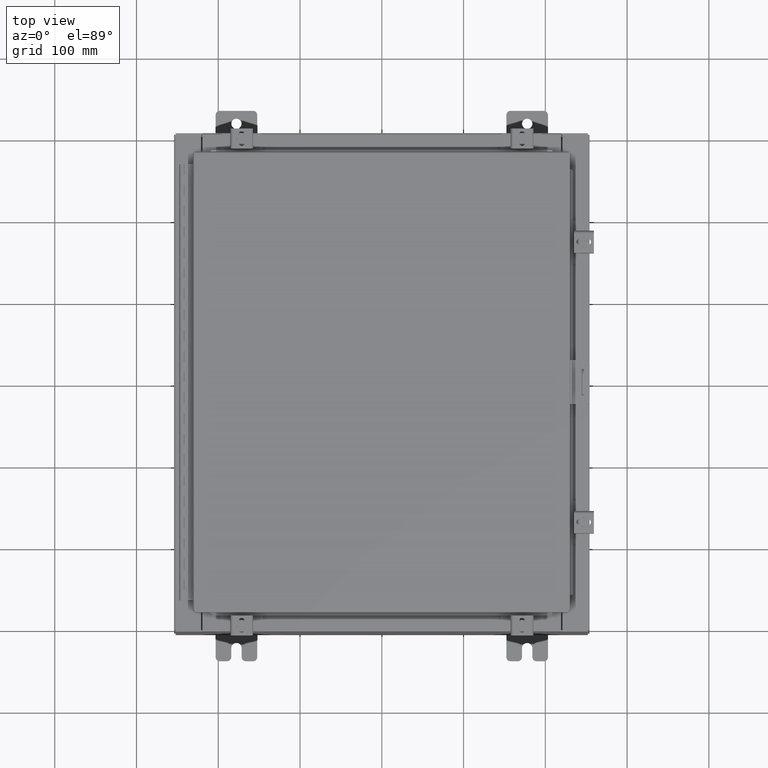
[diagram: clean part render]
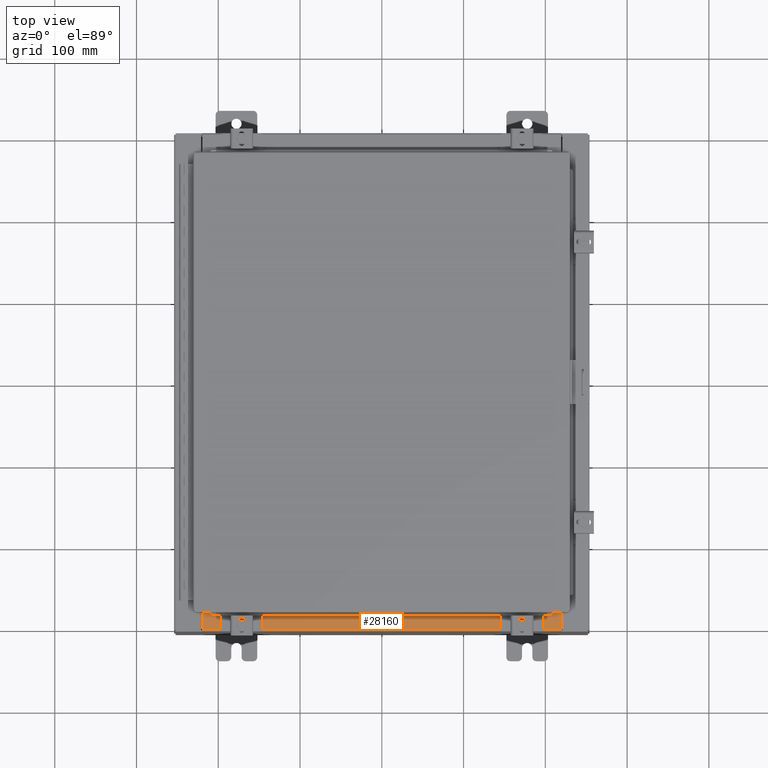
[diagram: same view with one face highlighted and labeled with its STEP entity id]
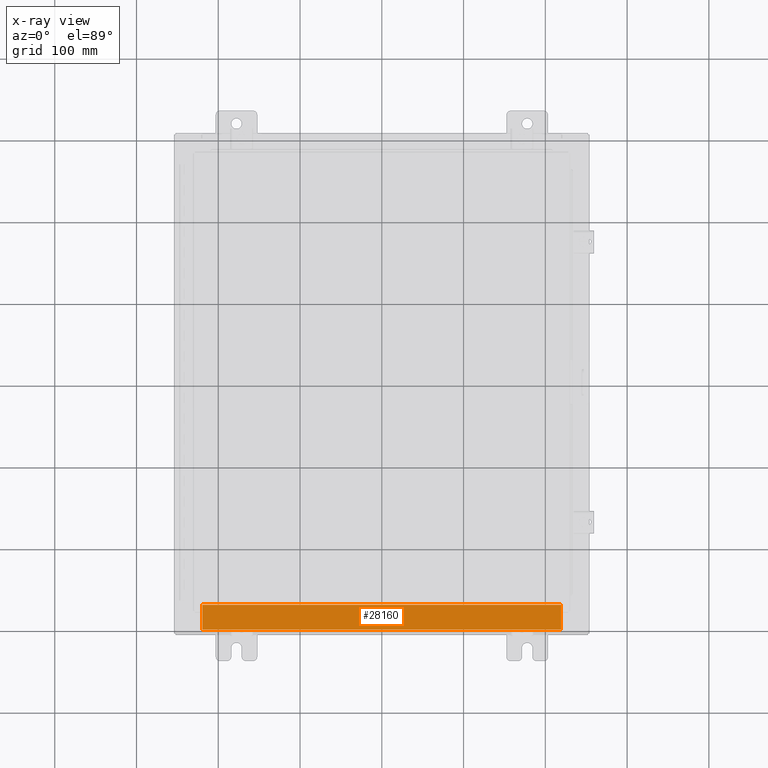
[diagram: x-ray of the same camera — body ghosted, the highlighted face saturated]
A machine part, top view. The second image highlights one B-rep face of the part: STEP entity #28160.
The next image is the same camera in x-ray: the body ghosted, the highlighted face saturated — about 0% of this face is hidden behind the body in this view.
In plain terms, the highlighted planar face has unit normal (-0, -0, 1).
Its self-contained STEP definition (entity closure, byte-faithful):
#844 = DIRECTION ( 'NONE',  ( -1.000000000000000000, -6.325772226333218300E-017, 2.256011509776178200E-031 ) ) ;
#1039 = CARTESIAN_POINT ( 'NONE',  ( 5.547702242495411600E-018, -0.08770000000000081900, 5.000000000000000000 ) ) ;
#2684 = ORIENTED_EDGE ( 'NONE', *, *, #25352, .F. ) ;
#4512 = VERTEX_POINT ( 'NONE', #13858 ) ;
#9094 = CARTESIAN_POINT ( 'NONE',  ( 0.0000000000000000000, 1.782631094477737600E-014, 5.000000000000000000 ) ) ;
#9279 = DIRECTION ( 'NONE',  ( -0.0000000000000000000, 1.000000000000000000, -3.566381192773190000E-015 ) ) ;
#9779 = CARTESIAN_POINT ( 'NONE',  ( -8.637200000000000000, -0.07469999999999973900, 5.000000000000000000 ) ) ;
#10307 = CARTESIAN_POINT ( 'NONE',  ( 8.637200000000000000, -1.287299999999999900, 5.000000000000004400 ) ) ;
#11802 = FACE_OUTER_BOUND ( 'NONE', #21431, .T. ) ;
#11911 = LINE ( 'NONE', #17254, #23576 ) ;
#13858 = CARTESIAN_POINT ( 'NONE',  ( 8.637200000000000000, -0.08770000000000047200, 5.000000000000000000 ) ) ;
#16125 = DIRECTION ( 'NONE',  ( -0.0000000000000000000, -1.000000000000000000, 3.566381192773190000E-015 ) ) ;
#16359 = CARTESIAN_POINT ( 'NONE',  ( 8.637200000000000000, -1.300299999999999800, 5.000000000000004400 ) ) ;
#16987 = EDGE_CURVE ( 'NONE', #4512, #30253, #26686, .T. ) ;
#17254 = CARTESIAN_POINT ( 'NONE',  ( 8.637200000000000000, -1.287299999999999900, 5.000000000000003600 ) ) ;
#17615 = ORIENTED_EDGE ( 'NONE', *, *, #25209, .F. ) ;
#18578 = CARTESIAN_POINT ( 'NONE',  ( -8.637200000000000000, -0.08770000000000081900, 5.000000000000000000 ) ) ;
#20020 = VERTEX_POINT ( 'NONE', #18578 ) ;
#21205 = PLANE ( 'NONE',  #30987 ) ;
#21371 = DIRECTION ( 'NONE',  ( 0.0000000000000000000, -1.000000000000000000, 3.566381192773190000E-015 ) ) ;
#21431 = EDGE_LOOP ( 'NONE', ( #2684, #17615, #23351, #29680 ) ) ;
#22673 = DIRECTION ( 'NONE',  ( 0.0000000000000000000, 3.566381192773190000E-015, 1.000000000000000000 ) ) ;
#23224 = LINE ( 'NONE', #1039, #32196 ) ;
#23351 = ORIENTED_EDGE ( 'NONE', *, *, #16987, .F. ) ;
#23576 = VECTOR ( 'NONE', #26025, 39.37007874015748100 ) ;
#24715 = EDGE_CURVE ( 'NONE', #4512, #20020, #23224, .T. ) ;
#24891 = VERTEX_POINT ( 'NONE', #29475 ) ;
#25209 = EDGE_CURVE ( 'NONE', #30253, #24891, #11911, .T. ) ;
#25352 = EDGE_CURVE ( 'NONE', #24891, #20020, #28479, .T. ) ;
#26025 = DIRECTION ( 'NONE',  ( -1.000000000000000000, 0.0000000000000000000, 0.0000000000000000000 ) ) ;
#26218 = VECTOR ( 'NONE', #9279, 39.37007874015748100 ) ;
#26686 = LINE ( 'NONE', #16359, #27459 ) ;
#27459 = VECTOR ( 'NONE', #16125, 39.37007874015748100 ) ;
#28160 = ADVANCED_FACE ( 'NONE', ( #11802 ), #21205, .T. ) ;
#28479 = LINE ( 'NONE', #9779, #26218 ) ;
#29475 = CARTESIAN_POINT ( 'NONE',  ( -8.637200000000000000, -1.287299999999999200, 5.000000000000004400 ) ) ;
#29680 = ORIENTED_EDGE ( 'NONE', *, *, #24715, .T. ) ;
#30253 = VERTEX_POINT ( 'NONE', #10307 ) ;
#30987 = AXIS2_PLACEMENT_3D ( 'NONE', #9094, #22673, #21371 ) ;
#32196 = VECTOR ( 'NONE', #844, 39.37007874015748100 ) ;